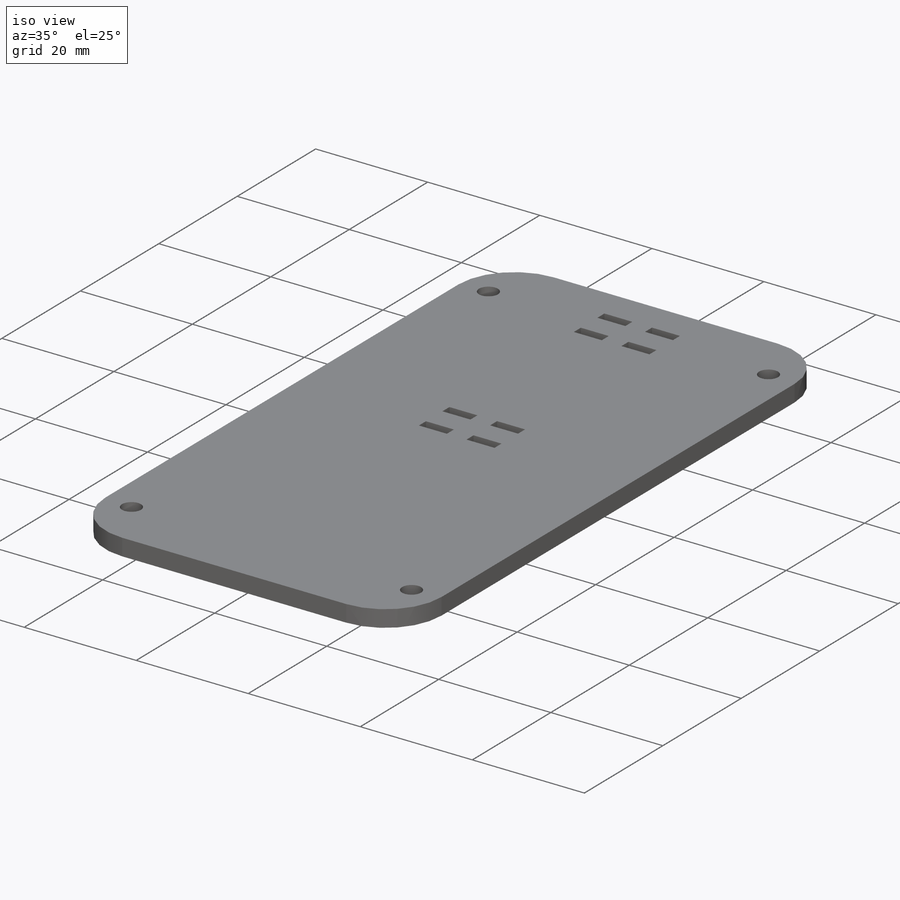
[diagram: iso view]
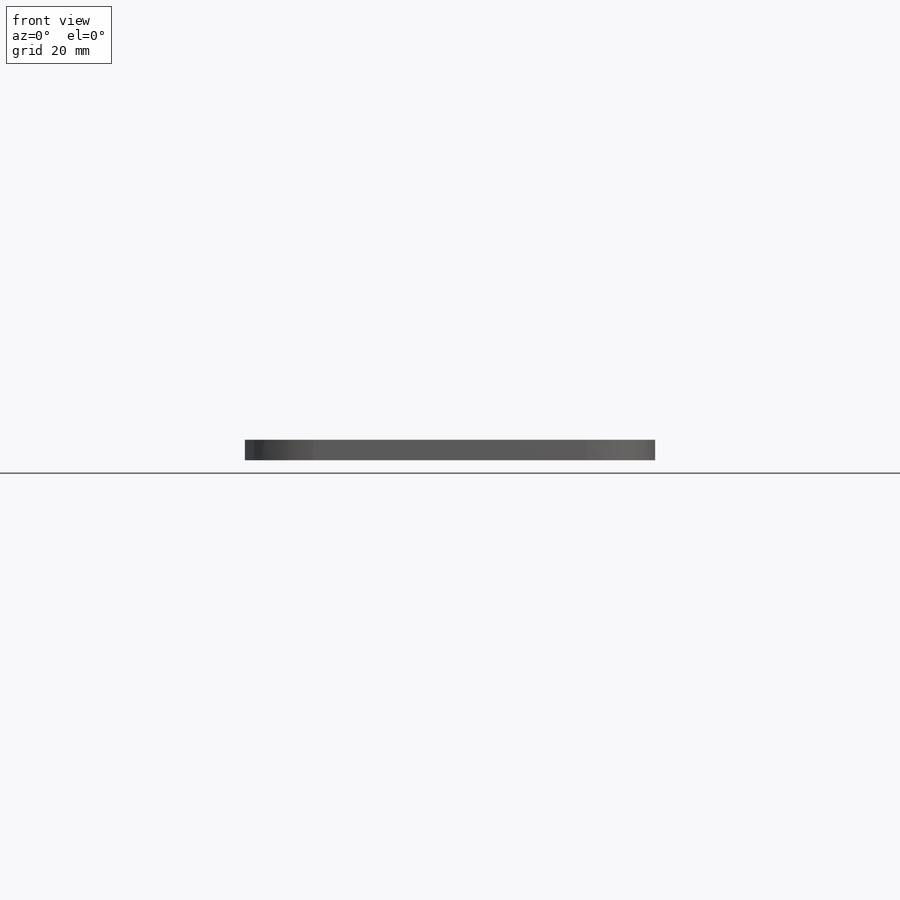
[diagram: front view]
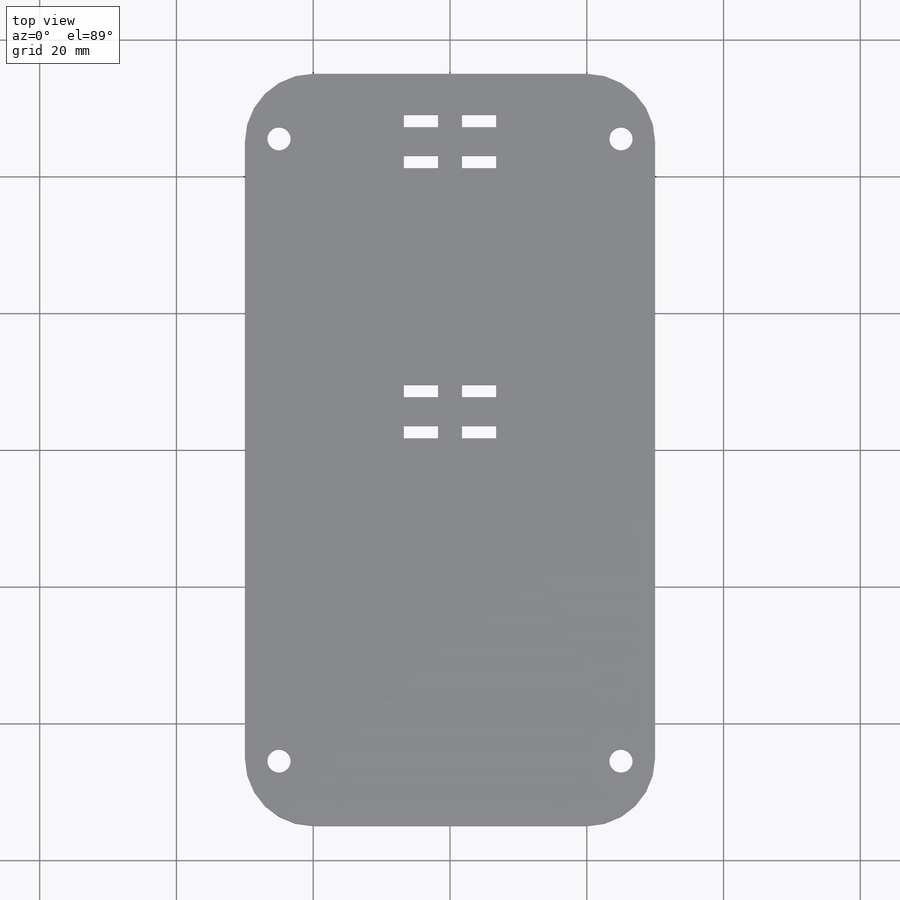
[diagram: top view]
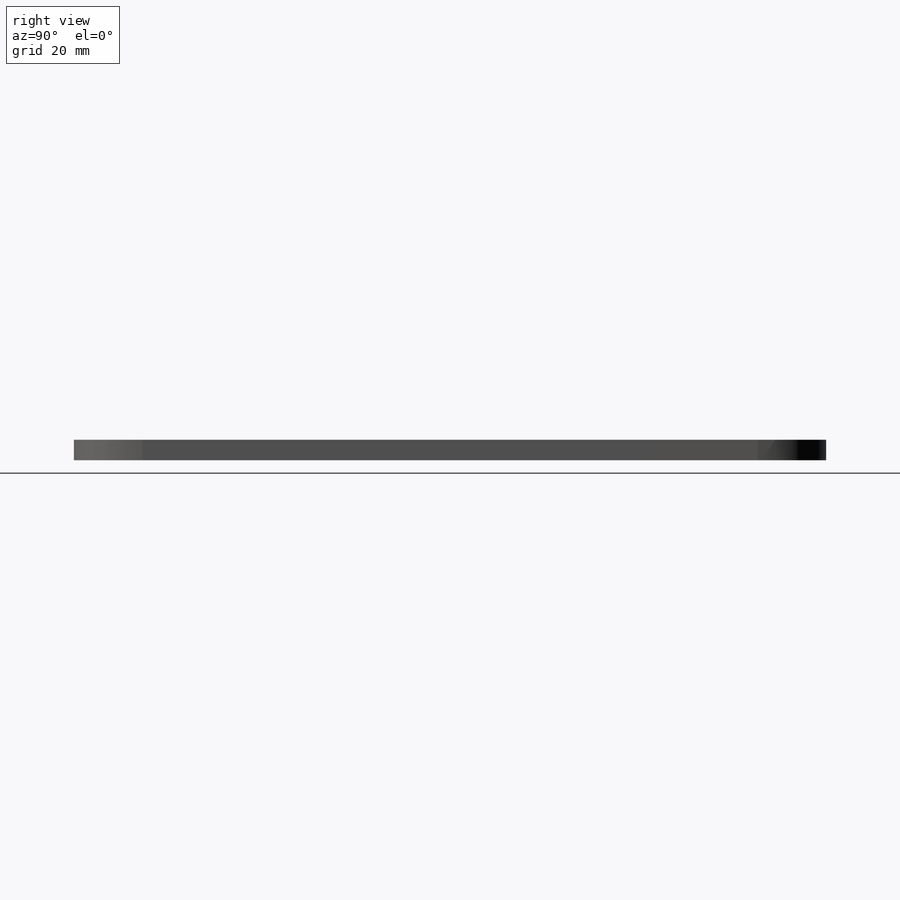
[diagram: right view]
SOLIDWORKS PART (.sldprt)
format: sldprt  version: not decoded by parser v0  size: 561,152 bytes
history: native  units: mm
features: sketch x6, cut_extrude x3, material x1, extrude x1, fillet x1, hole x1 (+13 scaffold rows collapsed)
feature tree (26):
  scaffold x13  (default folders/planes/origin — collapsed)
  material  "Material <not specified>"
  sketch  "Sketch1"  dims[D1=60.0mm D2=110.0mm]
  extrude  "Boss-Extrude1"  Depth=3mm
  fillet  "Fillet2"  Radius=10mm
  sketch  "Sketch2"  dims[c1.D2=9.25mm c1.D1=75.0mm c2.D2=26.0mm]
  cut_extrude  "Cut-Extrude1"  [1 undecoded]
  sketch  "Sketch3"  dims[D1=15.0mm]
  cut_extrude  "Cut-Extrude2"  Depth=1mm
  hole  "M3 Clearance Hole1"  Diameter=3.4mm Depth=3mm
  sketch  "Sketch5"  dims[D1=50.0mm D2=91.0mm]
  sketch  "Sketch4"  dims[hole-wizard template sketch: 60 standard entries collapsed; hole parameters kept: c18.Thru Hole Depth=3.0mm]
  sketch  "Sketch6"  dims[D1=6.0mm]
  cut_extrude  "Cut-Extrude3"  [1 undecoded]
decode coverage: 10 of 12 modeling features carry decoded parameters
note: ~ marks probable driven/reference dimensions
note: 2 parameter values undecoded
note: suppression state not decoded; provenance and decode notes live in map.json
